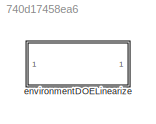
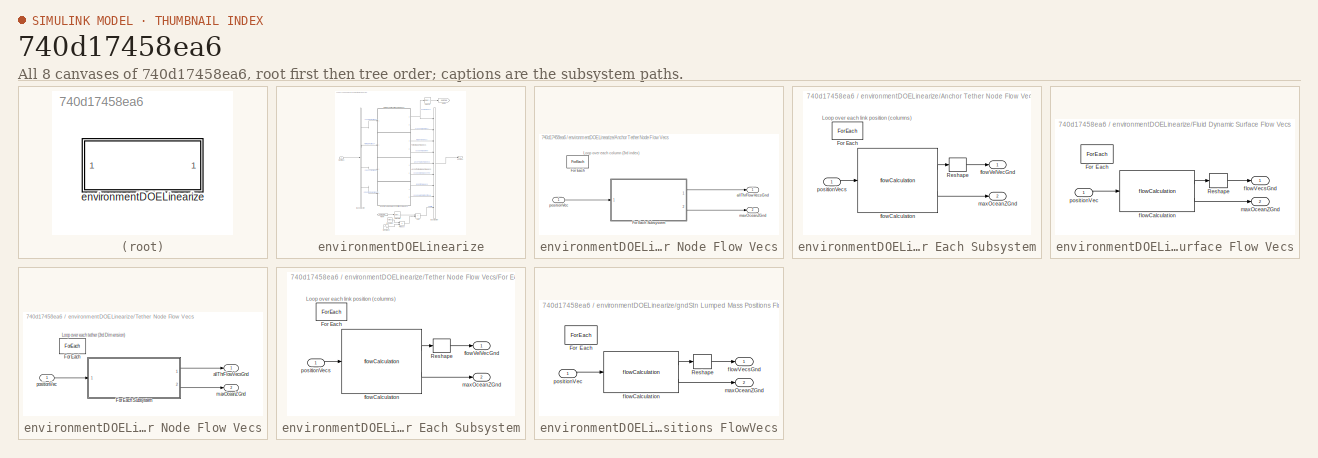
[diagram: thumbnail index - all 8 canvases of the model, root first then tree order]
MODEL slx_740d17458ea6
KIND library
CONFIG AbsTol = auto
CONFIG EnableMultiTasking = off
CONFIG FixedStep = auto
CONFIG MaxStep = auto
CONFIG MinStep = auto
CONFIG RelTol = 1e-3
CONFIG SampleTimeConstraint = Unconstrained
CONFIG Solver = VariableStepAuto
CONFIG SolverName = VariableStepAuto
CONFIG StartTime = 0.0
CONFIG StopTime = 10.0
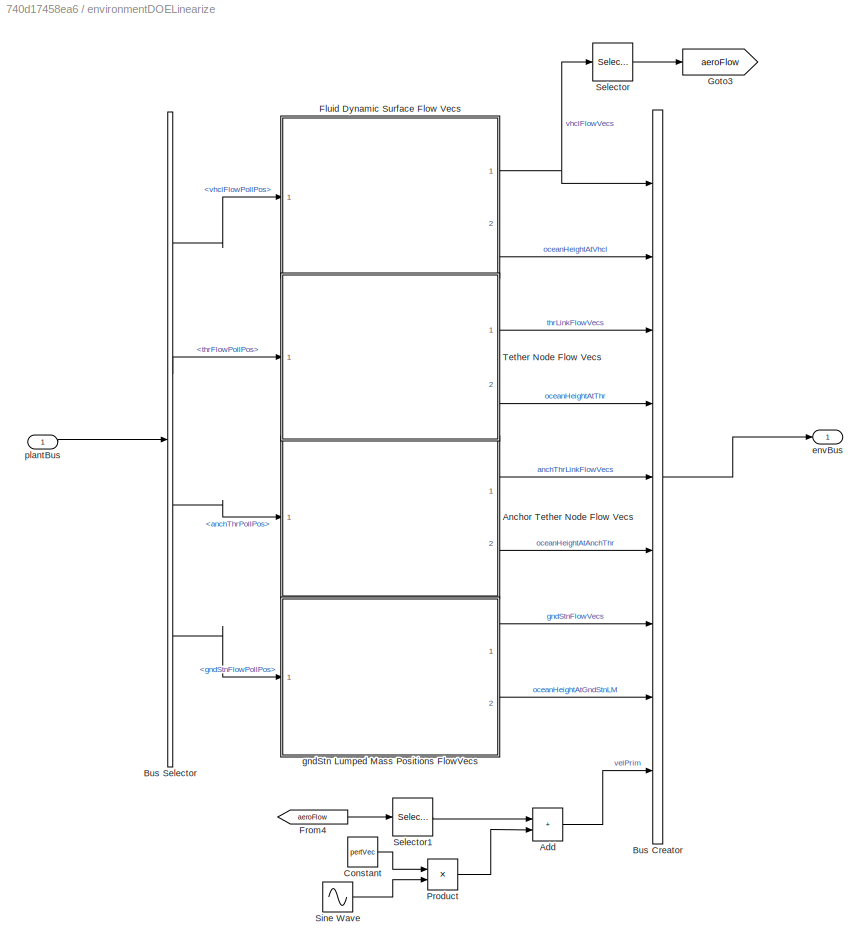
BLOCK [SubSystem] environmentDOELinearize
  InitFcn = initializeBussesFromBlock(gcb)
  LoadFcn = initializeBussesFromBlock(gcb)
  MinAlgLoopOccurrences = on
  Ports = [1, 1]
  RequestExecContextInheritance = off
  StartFcn = initializeBussesFromBlock(gcb)
BLOCK [Sum] environmentDOELinearize/Add
  IconShape = rectangular
  Ports = [2, 1]
BLOCK [SubSystem] environmentDOELinearize/Anchor Tether Node Flow Vecs
  Ports = [1, 2]
  RequestExecContextInheritance = off
BLOCK [ForEach] environmentDOELinearize/Anchor Tether Node Flow Vecs/For Each
  DisableCoverage = on
  Ports = []
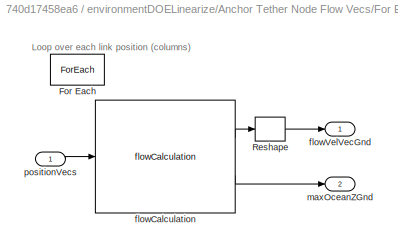
BLOCK [SubSystem] environmentDOELinearize/Anchor Tether Node Flow Vecs/For Each Subsystem
  MinAlgLoopOccurrences = on
  Ports = [1, 2]
  RequestExecContextInheritance = off
BLOCK [ForEach] environmentDOELinearize/Anchor Tether Node Flow Vecs/For Each Subsystem/For Each
  DisableCoverage = on
  Ports = []
BLOCK [Reshape] environmentDOELinearize/Anchor Tether Node Flow Vecs/For Each Subsystem/Reshape
  OutputDimensionality = Column vector (2-D)
  Ports = [1, 1]
BLOCK [Reference] environmentDOELinearize/Anchor Tether Node Flow Vecs/For Each Subsystem/flowCalculation  REF=flowcalculation_cl/flowCalculation
  Ports = [1, 2]
  SourceBlock = flowcalculation_cl/flowCalculation
  SourceType = SubSystem
BLOCK [Outport] environmentDOELinearize/Anchor Tether Node Flow Vecs/For Each Subsystem/flowVelVecGnd
  ConcatenationDimension = 2
  VectorParamsAs1DForOutWhenUnconnected = off
BLOCK [Outport] environmentDOELinearize/Anchor Tether Node Flow Vecs/For Each Subsystem/maxOceanZGnd
  ConcatenationDimension = 1
  Port = 2
  VectorParamsAs1DForOutWhenUnconnected = off
BLOCK [Inport] environmentDOELinearize/Anchor Tether Node Flow Vecs/For Each Subsystem/positionVecs
  Partition = on
  PartitionDimension = 2
  PartitionOffset = 0
  PartitionWidth = 1
BLOCK [Outport] environmentDOELinearize/Anchor Tether Node Flow Vecs/allThrFlowVecsGnd
  ConcatenationDimension = 3
  VectorParamsAs1DForOutWhenUnconnected = off
BLOCK [Outport] environmentDOELinearize/Anchor Tether Node Flow Vecs/maxOceanZGnd
  ConcatenationDimension = 1
  Port = 2
  VectorParamsAs1DForOutWhenUnconnected = off
BLOCK [Inport] environmentDOELinearize/Anchor Tether Node Flow Vecs/positionVec
  Partition = on
  PartitionDimension = 3
  PartitionOffset = 0
  PartitionWidth = 1
BLOCK [BusCreator] environmentDOELinearize/Bus Creator
  DisplayOption = bar
  InheritFromInputs = on
  Inputs = 9
  NonVirtualBus = on
  OutDataTypeStr = Bus: envBus
  Ports = [9, 1]
BLOCK [BusSelector] environmentDOELinearize/Bus Selector
  OutputSignals = vhclFlowPollPos,thrFlowPollPos,anchThrPollPos,gndStnFlowPollPos
  Ports = [1, 4]
BLOCK [Constant] environmentDOELinearize/Constant
  Value = pertVec
BLOCK [SubSystem] environmentDOELinearize/Fluid Dynamic Surface Flow Vecs
  MinAlgLoopOccurrences = on
  Ports = [1, 2]
  RequestExecContextInheritance = off
BLOCK [ForEach] environmentDOELinearize/Fluid Dynamic Surface Flow Vecs/For Each
  DisableCoverage = on
  Ports = []
BLOCK [Reshape] environmentDOELinearize/Fluid Dynamic Surface Flow Vecs/Reshape
  OutputDimensionality = Column vector (2-D)
  Ports = [1, 1]
BLOCK [Reference] environmentDOELinearize/Fluid Dynamic Surface Flow Vecs/flowCalculation  REF=flowcalculation_cl/flowCalculation
  Ports = [1, 2]
  SourceBlock = flowcalculation_cl/flowCalculation
  SourceType = SubSystem
BLOCK [Outport] environmentDOELinearize/Fluid Dynamic Surface Flow Vecs/flowVecsGnd
  ConcatenationDimension = 2
  VectorParamsAs1DForOutWhenUnconnected = off
BLOCK [Outport] environmentDOELinearize/Fluid Dynamic Surface Flow Vecs/maxOceanZGnd
  ConcatenationDimension = 1
  Port = 2
  VectorParamsAs1DForOutWhenUnconnected = off
BLOCK [Inport] environmentDOELinearize/Fluid Dynamic Surface Flow Vecs/positionVec
  Partition = on
  PartitionDimension = 2
  PartitionOffset = 0
  PartitionWidth = 1
BLOCK [From] environmentDOELinearize/From4
  GotoTag = aeroFlow
BLOCK [Goto] environmentDOELinearize/Goto3
  GotoTag = aeroFlow
BLOCK [Product] environmentDOELinearize/Product
  Ports = [2, 1]
BLOCK [Selector] environmentDOELinearize/Selector
  IndexOptions = Select all,Index vector (dialog)
  Indices = [1 3],[1 2 3 4]
  InputPortWidth = [13 3]
  NumberOfDimensions = 2
  OutputSizes = 1,1
  Ports = [1, 1]
BLOCK [Selector] environmentDOELinearize/Selector1
  IndexOptions = Select all,Index vector (dialog)
  Indices = [1 3],1
  InputPortWidth = 3
  NumberOfDimensions = 2
  OutputSizes = 1,1
  Ports = [1, 1]
BLOCK [Sin] environmentDOELinearize/Sine Wave
  Amplitude = distAmp*flwSpd
  Frequency = distFreq*2*pi
  Ports = [0, 1]
  SampleTime = [0,1]
BLOCK [SubSystem] environmentDOELinearize/Tether Node Flow Vecs
  MinAlgLoopOccurrences = on
  Ports = [1, 2]
  RequestExecContextInheritance = off
BLOCK [ForEach] environmentDOELinearize/Tether Node Flow Vecs/For Each
  DisableCoverage = on
  Ports = []
BLOCK [SubSystem] environmentDOELinearize/Tether Node Flow Vecs/For Each Subsystem
  MinAlgLoopOccurrences = on
  Ports = [1, 2]
  RequestExecContextInheritance = off
BLOCK [ForEach] environmentDOELinearize/Tether Node Flow Vecs/For Each Subsystem/For Each
  DisableCoverage = on
  Ports = []
BLOCK [Reshape] environmentDOELinearize/Tether Node Flow Vecs/For Each Subsystem/Reshape
  OutputDimensionality = Column vector (2-D)
  Ports = [1, 1]
BLOCK [Reference] environmentDOELinearize/Tether Node Flow Vecs/For Each Subsystem/flowCalculation  REF=flowcalculation_cl/flowCalculation
  Ports = [1, 2]
  SourceBlock = flowcalculation_cl/flowCalculation
  SourceType = SubSystem
BLOCK [Outport] environmentDOELinearize/Tether Node Flow Vecs/For Each Subsystem/flowVelVecGnd
  ConcatenationDimension = 2
  VectorParamsAs1DForOutWhenUnconnected = off
BLOCK [Outport] environmentDOELinearize/Tether Node Flow Vecs/For Each Subsystem/maxOceanZGnd
  ConcatenationDimension = 1
  Port = 2
  VectorParamsAs1DForOutWhenUnconnected = off
BLOCK [Inport] environmentDOELinearize/Tether Node Flow Vecs/For Each Subsystem/positionVecs
  Partition = on
  PartitionDimension = 2
  PartitionOffset = 0
  PartitionWidth = 1
BLOCK [Outport] environmentDOELinearize/Tether Node Flow Vecs/allThrFlowVecsGnd
  ConcatenationDimension = 3
  VectorParamsAs1DForOutWhenUnconnected = off
BLOCK [Outport] environmentDOELinearize/Tether Node Flow Vecs/maxOceanZGnd
  ConcatenationDimension = 1
  Port = 2
  VectorParamsAs1DForOutWhenUnconnected = off
BLOCK [Inport] environmentDOELinearize/Tether Node Flow Vecs/positionVec
  Partition = on
  PartitionDimension = 3
  PartitionOffset = 0
  PartitionWidth = 1
BLOCK [Outport] environmentDOELinearize/envBus
  OutDataTypeStr = Bus: envBus
  VectorParamsAs1DForOutWhenUnconnected = off
BLOCK [SubSystem] environmentDOELinearize/gndStn Lumped Mass Positions FlowVecs
  MinAlgLoopOccurrences = on
  Ports = [1, 2]
  RequestExecContextInheritance = off
BLOCK [ForEach] environmentDOELinearize/gndStn Lumped Mass Positions FlowVecs/For Each
  DisableCoverage = on
  Ports = []
BLOCK [Reshape] environmentDOELinearize/gndStn Lumped Mass Positions FlowVecs/Reshape
  OutputDimensionality = Column vector (2-D)
  Ports = [1, 1]
BLOCK [Reference] environmentDOELinearize/gndStn Lumped Mass Positions FlowVecs/flowCalculation  REF=flowcalculation_cl/flowCalculation
  Ports = [1, 2]
  SourceBlock = flowcalculation_cl/flowCalculation
  SourceType = SubSystem
BLOCK [Outport] environmentDOELinearize/gndStn Lumped Mass Positions FlowVecs/flowVecsGnd
  ConcatenationDimension = 2
  VectorParamsAs1DForOutWhenUnconnected = off
BLOCK [Outport] environmentDOELinearize/gndStn Lumped Mass Positions FlowVecs/maxOceanZGnd
  ConcatenationDimension = 1
  Port = 2
  VectorParamsAs1DForOutWhenUnconnected = off
BLOCK [Inport] environmentDOELinearize/gndStn Lumped Mass Positions FlowVecs/positionVec
  Partition = on
  PartitionDimension = 2
  PartitionOffset = 0
  PartitionWidth = 1
BLOCK [Inport] environmentDOELinearize/plantBus
  OutDataTypeStr = Bus: plantBus
ANNOTATION environmentDOELinearize/Anchor Tether Node Flow Vecs: Loop over each column (3rd index)
ANNOTATION environmentDOELinearize/Anchor Tether Node Flow Vecs/For Each Subsystem: Loop over each link position (columns)
ANNOTATION environmentDOELinearize/Tether Node Flow Vecs: Loop over each tether (3rd Dimension)
ANNOTATION environmentDOELinearize/Tether Node Flow Vecs/For Each Subsystem: Loop over each link position (columns)
LINE environmentDOELinearize/Add:1 -> environmentDOELinearize/Bus Creator:9
LINE environmentDOELinearize/Anchor Tether Node Flow Vecs/For Each Subsystem/Reshape:1 -> environmentDOELinearize/Anchor Tether Node Flow Vecs/For Each Subsystem/flowVelVecGnd:1
LINE environmentDOELinearize/Anchor Tether Node Flow Vecs/For Each Subsystem/flowCalculation:1 -> environmentDOELinearize/Anchor Tether Node Flow Vecs/For Each Subsystem/Reshape:1
LINE environmentDOELinearize/Anchor Tether Node Flow Vecs/For Each Subsystem/flowCalculation:2 -> environmentDOELinearize/Anchor Tether Node Flow Vecs/For Each Subsystem/maxOceanZGnd:1
LINE environmentDOELinearize/Anchor Tether Node Flow Vecs/For Each Subsystem/positionVecs:1 -> environmentDOELinearize/Anchor Tether Node Flow Vecs/For Each Subsystem/flowCalculation:1
LINE environmentDOELinearize/Anchor Tether Node Flow Vecs/For Each Subsystem:1 -> environmentDOELinearize/Anchor Tether Node Flow Vecs/allThrFlowVecsGnd:1
LINE environmentDOELinearize/Anchor Tether Node Flow Vecs/For Each Subsystem:2 -> environmentDOELinearize/Anchor Tether Node Flow Vecs/maxOceanZGnd:1
LINE environmentDOELinearize/Anchor Tether Node Flow Vecs/positionVec:1 -> environmentDOELinearize/Anchor Tether Node Flow Vecs/For Each Subsystem:1
LINE environmentDOELinearize/Anchor Tether Node Flow Vecs:1 -> environmentDOELinearize/Bus Creator:5
LINE environmentDOELinearize/Anchor Tether Node Flow Vecs:2 -> environmentDOELinearize/Bus Creator:6
LINE environmentDOELinearize/Bus Creator:1 -> environmentDOELinearize/envBus:1
LINE environmentDOELinearize/Bus Selector:1 -> environmentDOELinearize/Fluid Dynamic Surface Flow Vecs:1
LINE environmentDOELinearize/Bus Selector:2 -> environmentDOELinearize/Tether Node Flow Vecs:1
LINE environmentDOELinearize/Bus Selector:3 -> environmentDOELinearize/Anchor Tether Node Flow Vecs:1
LINE environmentDOELinearize/Bus Selector:4 -> environmentDOELinearize/gndStn Lumped Mass Positions FlowVecs:1
LINE environmentDOELinearize/Constant:1 -> environmentDOELinearize/Product:1
LINE environmentDOELinearize/Fluid Dynamic Surface Flow Vecs/Reshape:1 -> environmentDOELinearize/Fluid Dynamic Surface Flow Vecs/flowVecsGnd:1
LINE environmentDOELinearize/Fluid Dynamic Surface Flow Vecs/flowCalculation:1 -> environmentDOELinearize/Fluid Dynamic Surface Flow Vecs/Reshape:1
LINE environmentDOELinearize/Fluid Dynamic Surface Flow Vecs/flowCalculation:2 -> environmentDOELinearize/Fluid Dynamic Surface Flow Vecs/maxOceanZGnd:1
LINE environmentDOELinearize/Fluid Dynamic Surface Flow Vecs/positionVec:1 -> environmentDOELinearize/Fluid Dynamic Surface Flow Vecs/flowCalculation:1
NET environmentDOELinearize/Fluid Dynamic Surface Flow Vecs:1 -> environmentDOELinearize/Bus Creator:1, environmentDOELinearize/Selector:1
LINE environmentDOELinearize/Fluid Dynamic Surface Flow Vecs:2 -> environmentDOELinearize/Bus Creator:2
LINE environmentDOELinearize/From4:1 -> environmentDOELinearize/Selector1:1
LINE environmentDOELinearize/Product:1 -> environmentDOELinearize/Add:2
LINE environmentDOELinearize/Selector1:1 -> environmentDOELinearize/Add:1
LINE environmentDOELinearize/Selector:1 -> environmentDOELinearize/Goto3:1
LINE environmentDOELinearize/Sine Wave:1 -> environmentDOELinearize/Product:2
LINE environmentDOELinearize/Tether Node Flow Vecs/For Each Subsystem/Reshape:1 -> environmentDOELinearize/Tether Node Flow Vecs/For Each Subsystem/flowVelVecGnd:1
LINE environmentDOELinearize/Tether Node Flow Vecs/For Each Subsystem/flowCalculation:1 -> environmentDOELinearize/Tether Node Flow Vecs/For Each Subsystem/Reshape:1
LINE environmentDOELinearize/Tether Node Flow Vecs/For Each Subsystem/flowCalculation:2 -> environmentDOELinearize/Tether Node Flow Vecs/For Each Subsystem/maxOceanZGnd:1
LINE environmentDOELinearize/Tether Node Flow Vecs/For Each Subsystem/positionVecs:1 -> environmentDOELinearize/Tether Node Flow Vecs/For Each Subsystem/flowCalculation:1
LINE environmentDOELinearize/Tether Node Flow Vecs/For Each Subsystem:1 -> environmentDOELinearize/Tether Node Flow Vecs/allThrFlowVecsGnd:1
LINE environmentDOELinearize/Tether Node Flow Vecs/For Each Subsystem:2 -> environmentDOELinearize/Tether Node Flow Vecs/maxOceanZGnd:1
LINE environmentDOELinearize/Tether Node Flow Vecs/positionVec:1 -> environmentDOELinearize/Tether Node Flow Vecs/For Each Subsystem:1
LINE environmentDOELinearize/Tether Node Flow Vecs:1 -> environmentDOELinearize/Bus Creator:3
LINE environmentDOELinearize/Tether Node Flow Vecs:2 -> environmentDOELinearize/Bus Creator:4
LINE environmentDOELinearize/gndStn Lumped Mass Positions FlowVecs/Reshape:1 -> environmentDOELinearize/gndStn Lumped Mass Positions FlowVecs/flowVecsGnd:1
LINE environmentDOELinearize/gndStn Lumped Mass Positions FlowVecs/flowCalculation:1 -> environmentDOELinearize/gndStn Lumped Mass Positions FlowVecs/Reshape:1
LINE environmentDOELinearize/gndStn Lumped Mass Positions FlowVecs/flowCalculation:2 -> environmentDOELinearize/gndStn Lumped Mass Positions FlowVecs/maxOceanZGnd:1
LINE environmentDOELinearize/gndStn Lumped Mass Positions FlowVecs/positionVec:1 -> environmentDOELinearize/gndStn Lumped Mass Positions FlowVecs/flowCalculation:1
LINE environmentDOELinearize/gndStn Lumped Mass Positions FlowVecs:1 -> environmentDOELinearize/Bus Creator:7
LINE environmentDOELinearize/gndStn Lumped Mass Positions FlowVecs:2 -> environmentDOELinearize/Bus Creator:8
LINE environmentDOELinearize/plantBus:1 -> environmentDOELinearize/Bus Selector:1
note: NET lines group one-source signal fan-out (src -> all destinations, sorted); 1:1 wires keep LINE
